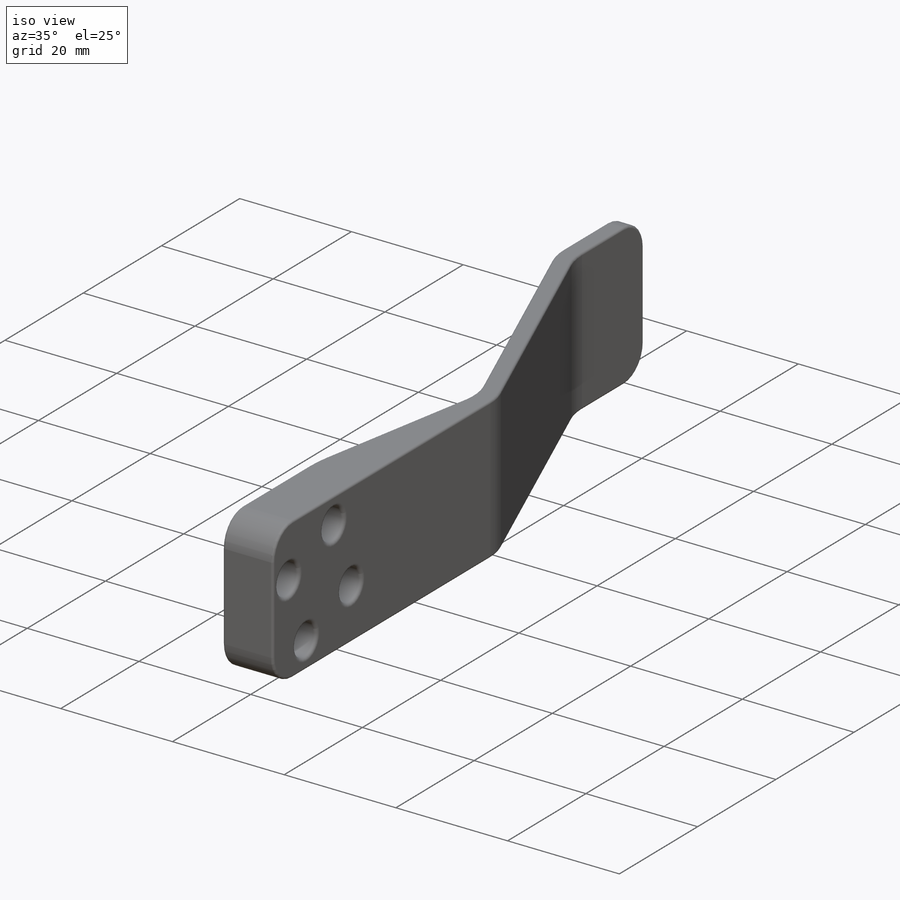
[diagram: iso view]
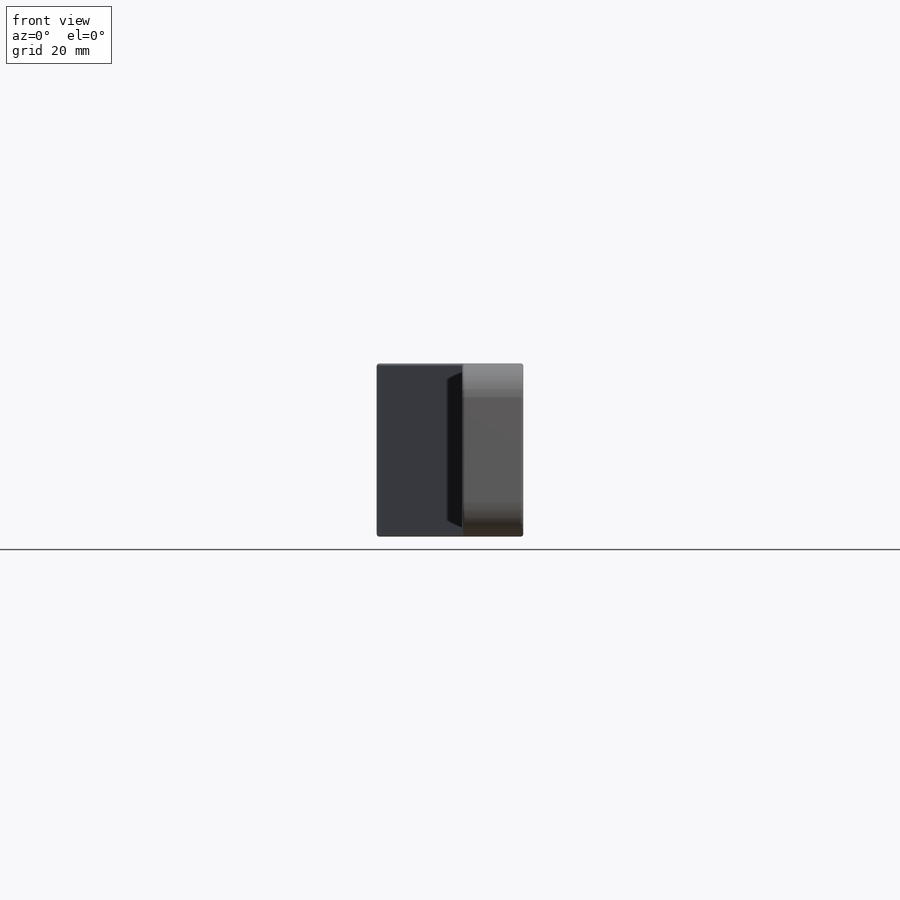
[diagram: front view]
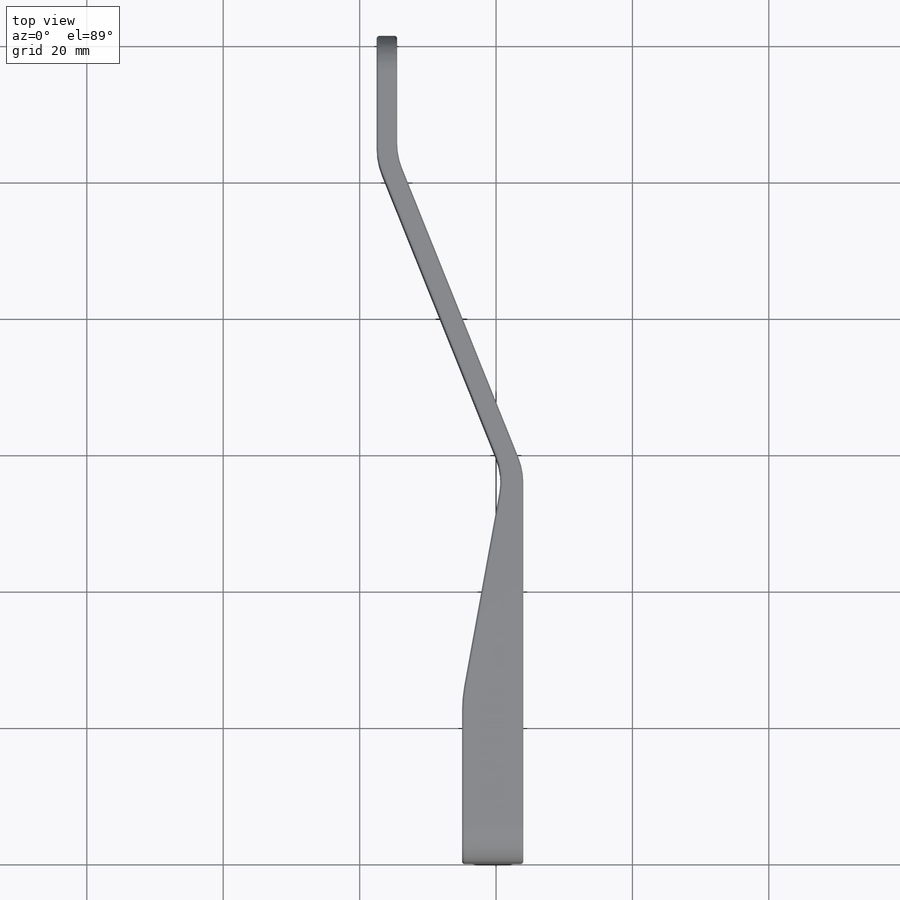
[diagram: top view]
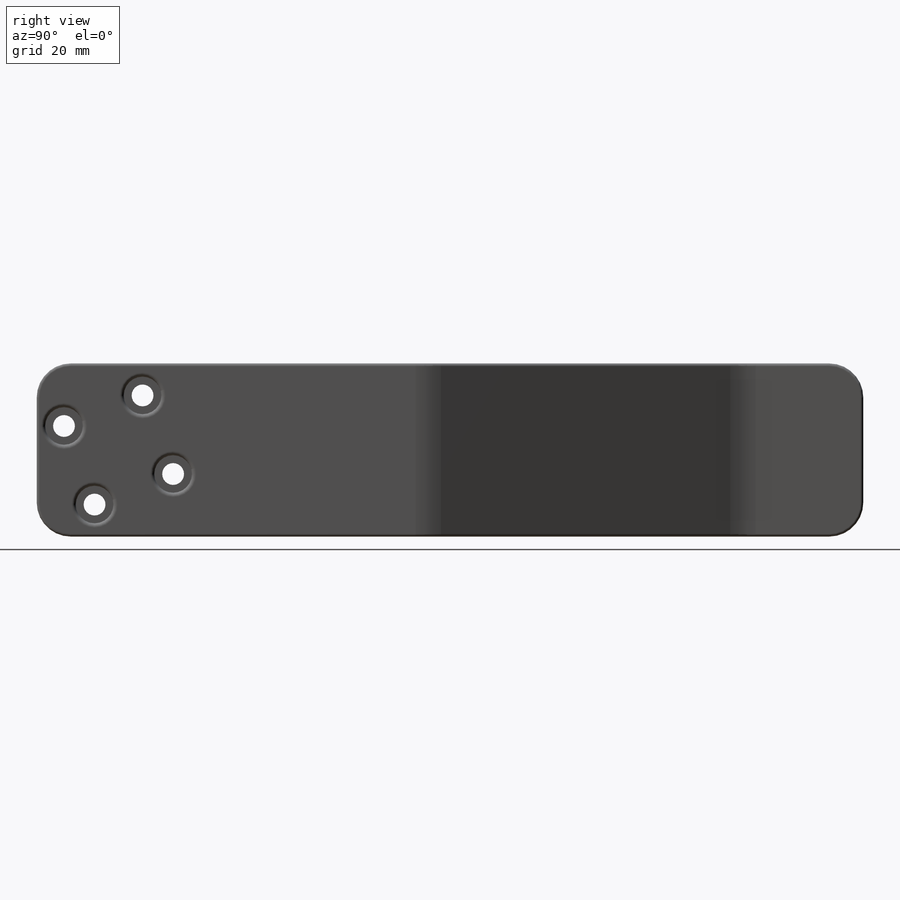
[diagram: right view]
SOLIDWORKS PART (.sldprt)
format: sldprt  version: not decoded by parser v0  size: 1,235,456 bytes
history: native  units: mm
features: sketch x6, fillet x5, cut_extrude x2, extrude x2, material x1, sweep x1 (+13 scaffold rows collapsed)
feature tree (30):
  scaffold x13  (default folders/planes/origin — collapsed)
  material  "Material <not specified>"
  sketch  "Sketch1"  dims[D1=21.0mm D2=2.0mm D3=25.4mm]
  sketch  "Sketch2"  dims[c1.D1=4.0mm c1.D2=18.0mm c1.D3=70.0mm c1.D4=64.0mm c2.D3=121.2mm]
  sweep  "Sweep1"
  sketch  "Sketch3"  dims[c1.D1=17.48mm c1.D4=2.9mm c1.D2=12.0mm c1.D3=4.0mm c2.D4=~8.926743mm c2.D5=12.0mm c2.D6=~5.873929mm c3.D5=12.0mm c3.D6=~3.519602mm c3.D7=8.0mm c4.D5=4.0]
  cut_extrude  "Cut-Extrude1"  [1 undecoded]
  sketch  "Sketch4"  dims[D1=24.0mm]
  extrude  "Boss-Extrude1"  Depth=5.98mm
  sketch  "Sketch6"  dims[D1=29.0mm]
  extrude  "Boss-Extrude2"  [1 undecoded]
  fillet  "Fillet1"  Radius=5mm
  fillet  "Fillet2"  Radius=10mm
  fillet  "Fillet3"  Radius=0.4mm
  sketch  "Sketch5"  dims[D1=5.2mm]
  cut_extrude  "Cut-Extrude2"  Depth=2mm
  fillet  "Fillet7"  Radius=20mm
  fillet  "Fillet8"  Radius=0.6mm
decode coverage: 13 of 16 modeling features carry decoded parameters
note: ~ marks probable driven/reference dimensions
note: 2 parameter values undecoded
note: suppression state not decoded; provenance and decode notes live in map.json
